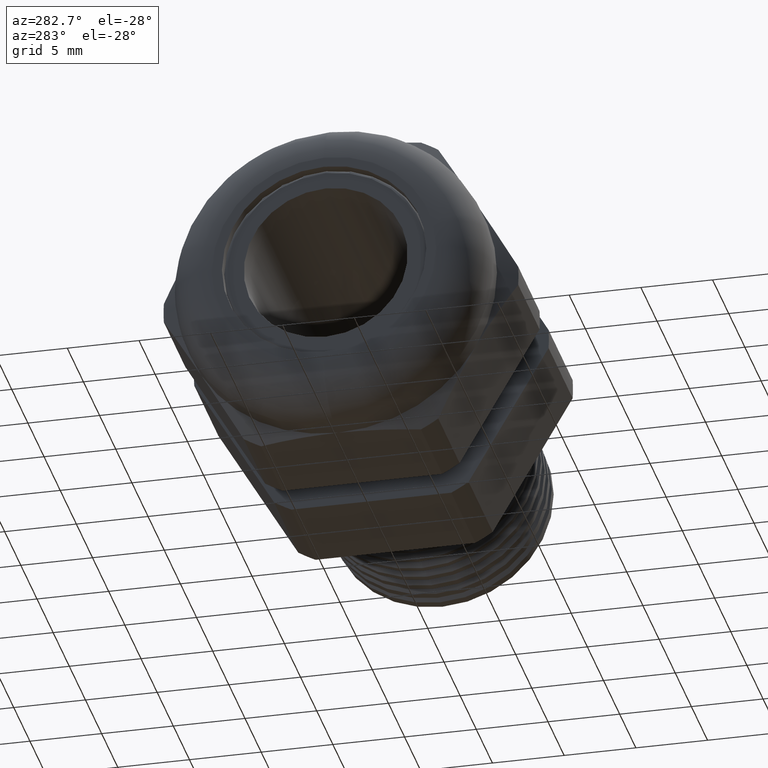
[diagram: clean part render]
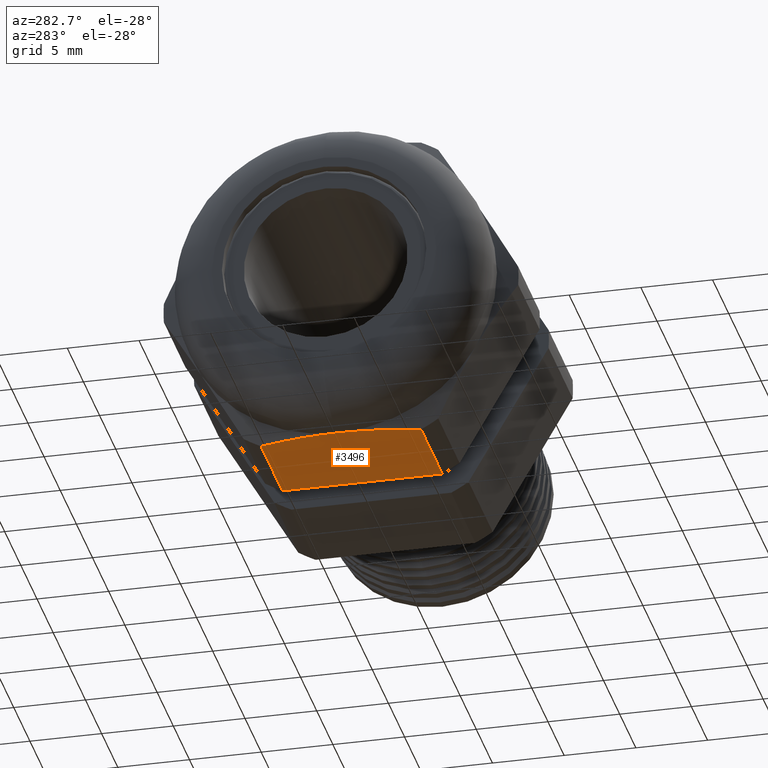
[diagram: same view with one face highlighted and labeled with its STEP entity id]
A machine part, auxiliary view. The second image highlights one B-rep face of the part: STEP entity #3496.
In plain terms, the highlighted planar face has unit normal (0, 0, -1).
Its self-contained STEP definition (entity closure, byte-faithful):
#370 = VERTEX_POINT ( 'NONE', #1665 ) ;
#381 = EDGE_CURVE ( 'NONE', #1469, #370, #1702, .T. ) ;
#429 = VERTEX_POINT ( 'NONE', #1790 ) ;
#651 = EDGE_LOOP ( 'NONE', ( #1438, #3459, #3533, #3474, #3471 ) ) ;
#702 = VERTEX_POINT ( 'NONE', #2321 ) ;
#1438 = ORIENTED_EDGE ( 'NONE', *, *, #1462, .F. ) ;
#1461 = VERTEX_POINT ( 'NONE', #2817 ) ;
#1462 = EDGE_CURVE ( 'NONE', #429, #1461, #2816, .T. ) ;
#1469 = VERTEX_POINT ( 'NONE', #2865 ) ;
#1665 = CARTESIAN_POINT ( 'NONE',  ( -0.4037499999999999400, 0.2194056517047814900, -0.4350000000000001600 ) ) ;
#1699 = DIRECTION ( 'NONE',  ( 1.000000000000000000, 0.0000000000000000000, 0.0000000000000000000 ) ) ;
#1700 = VECTOR ( 'NONE', #1699, 39.37007874015748100 ) ;
#1701 = CARTESIAN_POINT ( 'NONE',  ( -2.085539792128106900, 0.2194056517047814900, -0.4350000000000001600 ) ) ;
#1702 = LINE ( 'NONE', #1701, #1700 ) ;
#1790 = CARTESIAN_POINT ( 'NONE',  ( -0.6636123159483016100, -0.2194056517047815700, -0.4350000000000000000 ) ) ;
#2321 = CARTESIAN_POINT ( 'NONE',  ( -0.6937499999999999800, 0.0000000000000000000, -0.4349999999999999400 ) ) ;
#2813 = DIRECTION ( 'NONE',  ( 1.000000000000000000, 0.0000000000000000000, 0.0000000000000000000 ) ) ;
#2814 = VECTOR ( 'NONE', #2813, 39.37007874015748100 ) ;
#2815 = CARTESIAN_POINT ( 'NONE',  ( -2.085539792128106900, -0.2194056517047815700, -0.4350000000000000000 ) ) ;
#2816 = LINE ( 'NONE', #2815, #2814 ) ;
#2817 = CARTESIAN_POINT ( 'NONE',  ( -0.4037500000000000500, -0.2194056517047815700, -0.4350000000000000000 ) ) ;
#2865 = CARTESIAN_POINT ( 'NONE',  ( -0.6636123159483016100, 0.2194056517047814900, -0.4350000000000001600 ) ) ;
#2876 = CARTESIAN_POINT ( 'NONE',  ( -0.6636123159483016100, -0.2194056517047815700, -0.4350000000000000000 ) ) ;
#2877 = B_SPLINE_CURVE_WITH_KNOTS ( 'NONE', 3,
 ( #2876, #2931, #2930, #2929, #2928, #2927 ),
 .UNSPECIFIED., .F., .F.,
 ( 4, 2, 4 ),
 ( 0.01171492078236654300, 0.01452339897473597600, 0.01733187716710540800 ),
 .UNSPECIFIED. ) ;
#2901 = DIRECTION ( 'NONE',  ( 0.0000000000000000000, -1.000000000000000000, 0.0000000000000000000 ) ) ;
#2902 = VECTOR ( 'NONE', #2901, 39.37007874015748100 ) ;
#2903 = CARTESIAN_POINT ( 'NONE',  ( -0.4037499999999999400, 0.3604000000000000500, -0.4350000000000001600 ) ) ;
#2904 = LINE ( 'NONE', #2903, #2902 ) ;
#2927 = CARTESIAN_POINT ( 'NONE',  ( -0.6937499999999999800, 0.0000000000000000000, -0.4349999999999999400 ) ) ;
#2928 = CARTESIAN_POINT ( 'NONE',  ( -0.6937499999999999800, -0.03692488634457338100, -0.4350000000000001600 ) ) ;
#2929 = CARTESIAN_POINT ( 'NONE',  ( -0.6909979177737983800, -0.07368069999079035500, -0.4350000000000001600 ) ) ;
#2930 = CARTESIAN_POINT ( 'NONE',  ( -0.6806100903481321400, -0.1468923020627232200, -0.4350000000000001600 ) ) ;
#2931 = CARTESIAN_POINT ( 'NONE',  ( -0.6729424452716374900, -0.1835210805888871400, -0.4350000000000001600 ) ) ;
#2985 = DIRECTION ( 'NONE',  ( -1.000000000000000000, 0.0000000000000000000, 0.0000000000000000000 ) ) ;
#2986 = DIRECTION ( 'NONE',  ( 0.0000000000000000000, 0.0000000000000000000, -1.000000000000000000 ) ) ;
#2987 = CARTESIAN_POINT ( 'NONE',  ( -2.085539792128106900, -0.2194056517047814900, -0.4350000000000001600 ) ) ;
#2988 = AXIS2_PLACEMENT_3D ( 'NONE', #2987, #2986, #2985 ) ;
#2989 = FACE_OUTER_BOUND ( 'NONE', #651, .T. ) ;
#2992 = PLANE ( 'NONE',  #2988 ) ;
#3039 = CARTESIAN_POINT ( 'NONE',  ( -0.6636123159483016100, 0.2194056517047814900, -0.4350000000000001600 ) ) ;
#3040 = CARTESIAN_POINT ( 'NONE',  ( -0.6728681869240495900, 0.1838066853069603700, -0.4350000000000001600 ) ) ;
#3041 = CARTESIAN_POINT ( 'NONE',  ( -0.6804583868692184500, 0.1477359349688085200, -0.4350000000000001600 ) ) ;
#3042 = CARTESIAN_POINT ( 'NONE',  ( -0.6883243585717909700, 0.09263299646418007800, -0.4350000000000001600 ) ) ;
#3043 = CARTESIAN_POINT ( 'NONE',  ( -0.6903606414132136300, 0.07402691816832882000, -0.4350000000000002200 ) ) ;
#3044 = CARTESIAN_POINT ( 'NONE',  ( -0.6930692256033762500, 0.03695117037958229500, -0.4350000000000001600 ) ) ;
#3045 = CARTESIAN_POINT ( 'NONE',  ( -0.6937499999999995300, 0.01845467368447468700, -0.4350000000000001600 ) ) ;
#3046 = CARTESIAN_POINT ( 'NONE',  ( -0.6937499999999999800, 0.0000000000000000000, -0.4349999999999999400 ) ) ;
#3050 = B_SPLINE_CURVE_WITH_KNOTS ( 'NONE', 3,
 ( #3046, #3045, #3044, #3043, #3042, #3041, #3040, #3039 ),
 .UNSPECIFIED., .F., .F.,
 ( 4, 2, 2, 4 ),
 ( 0.01733187716710540800, 0.01873552532207821800, 0.02013917347705102700, 0.02294646978699664600 ),
 .UNSPECIFIED. ) ;
#3459 = ORIENTED_EDGE ( 'NONE', *, *, #3461, .T. ) ;
#3461 = EDGE_CURVE ( 'NONE', #429, #702, #2877, .T. ) ;
#3471 = ORIENTED_EDGE ( 'NONE', *, *, #3479, .T. ) ;
#3474 = ORIENTED_EDGE ( 'NONE', *, *, #381, .T. ) ;
#3479 = EDGE_CURVE ( 'NONE', #370, #1461, #2904, .T. ) ;
#3496 = ADVANCED_FACE ( 'NONE', ( #2989 ), #2992, .T. ) ;
#3533 = ORIENTED_EDGE ( 'NONE', *, *, #3535, .T. ) ;
#3535 = EDGE_CURVE ( 'NONE', #702, #1469, #3050, .T. ) ;